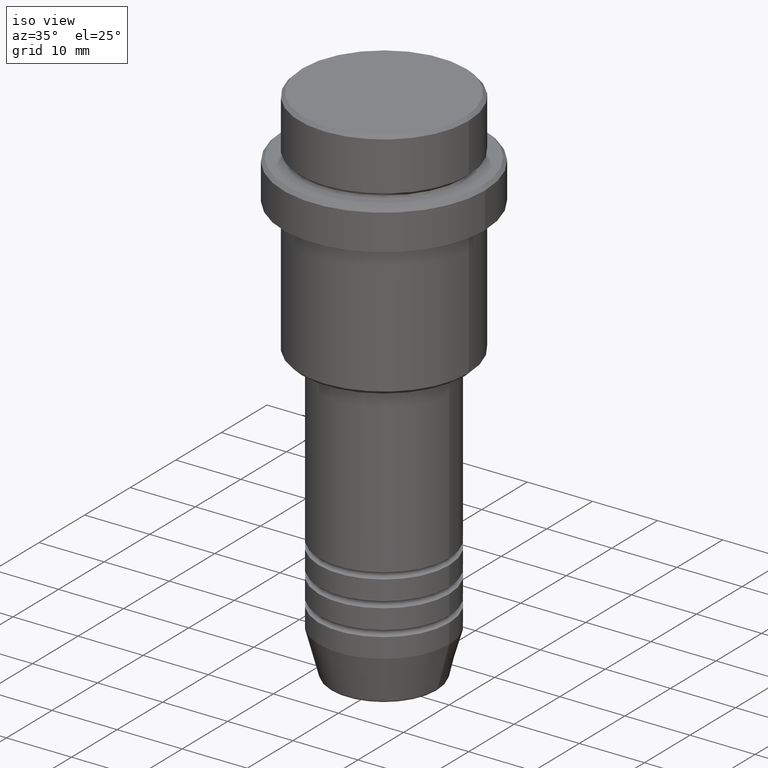
[diagram: clean part render]
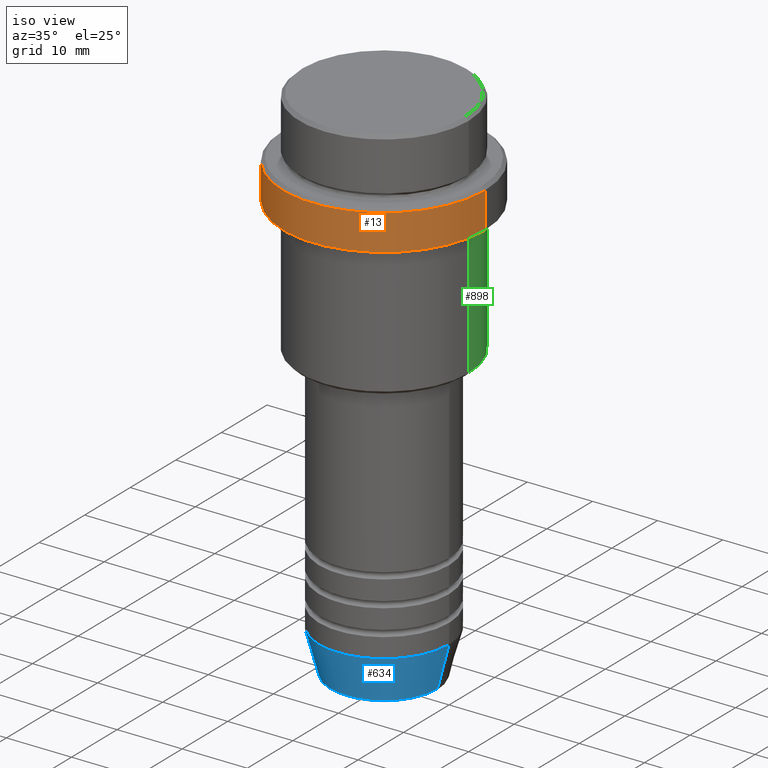
[diagram: same view with three faces highlighted in distinct colors, each labeled with its STEP entity id]
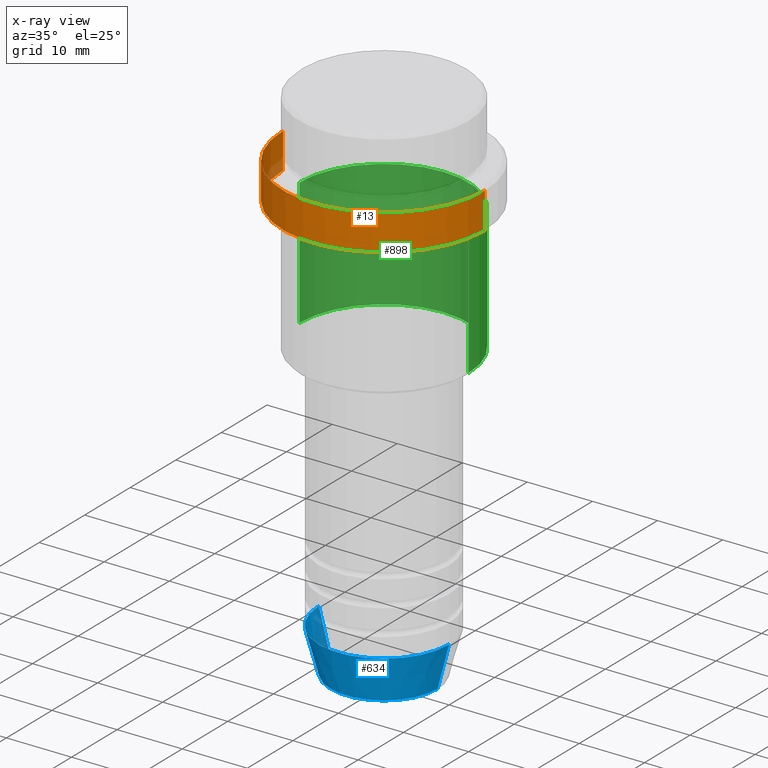
[diagram: x-ray of the same camera — body ghosted, the three highlighted faces saturated]
A machine part, iso view with three faces highlighted in distinct colors.
The next image is the same camera in x-ray (body ghosted, the three faces saturated) — at least one of them is partly hidden behind the body in this view.
Their STEP definitions:

[orange] entity #13 — the highlighted cylindrical surface (partial cylindrical patch) has radius 15.5 mm, axis along (-0, -0, 1).
#5 = DIRECTION ( 'NONE',  ( -0.000000000000000000, -0.000000000000000000, 1.000000000000000000 ) ) ;
#11 = CARTESIAN_POINT ( 'NONE',  ( 0.000000000000000000, 0.000000000000000000, -15.00000000000000000 ) ) ;
#13 = ADVANCED_FACE ( 'NONE', ( #1224 ), #1114, .T. ) ;
#113 = DIRECTION ( 'NONE',  ( 1.000000000000000000, 0.000000000000000000, 0.000000000000000000 ) ) ;
#184 = ORIENTED_EDGE ( 'NONE', *, *, #1280, .T. ) ;
#208 = LINE ( 'NONE', #628, #1349 ) ;
#221 = DIRECTION ( 'NONE',  ( -0.000000000000000000, -0.000000000000000000, 1.000000000000000000 ) ) ;
#271 = CARTESIAN_POINT ( 'NONE',  ( 15.50000000000000000, 0.000000000000000000, -9.500000000000012434 ) ) ;
#288 = ORIENTED_EDGE ( 'NONE', *, *, #533, .F. ) ;
#343 = ORIENTED_EDGE ( 'NONE', *, *, #745, .T. ) ;
#378 = DIRECTION ( 'NONE',  ( 1.000000000000000000, 0.000000000000000000, 0.000000000000000000 ) ) ;
#430 = ORIENTED_EDGE ( 'NONE', *, *, #1363, .T. ) ;
#448 = CIRCLE ( 'NONE', #569, 15.50000000000000000 ) ;
#473 = CARTESIAN_POINT ( 'NONE',  ( 0.000000000000000000, 0.000000000000000000, -9.500000000000012434 ) ) ;
#533 = EDGE_CURVE ( 'NONE', #1216, #1053, #1245, .T. ) ;
#552 = CIRCLE ( 'NONE', #937, 15.50000000000000000 ) ;
#569 = AXIS2_PLACEMENT_3D ( 'NONE', #473, #1259, #378 ) ;
#588 = VECTOR ( 'NONE', #1035, 1000.000000000000000 ) ;
#589 = EDGE_LOOP ( 'NONE', ( #288, #184, #343, #430 ) ) ;
#627 = CARTESIAN_POINT ( 'NONE',  ( 15.50000000000000000, 0.000000000000000000, -15.00000000000000000 ) ) ;
#628 = CARTESIAN_POINT ( 'NONE',  ( 15.50000000000000000, 0.000000000000000000, 0.000000000000000000 ) ) ;
#648 = DIRECTION ( 'NONE',  ( 1.000000000000000000, 0.000000000000000000, 0.000000000000000000 ) ) ;
#654 = CARTESIAN_POINT ( 'NONE',  ( -15.50000000000000000, 1.898202538678397557E-15, -15.00000000000000000 ) ) ;
#719 = CARTESIAN_POINT ( 'NONE',  ( -15.50000000000000000, 1.898202538678397557E-15, -9.500000000000012434 ) ) ;
#745 = EDGE_CURVE ( 'NONE', #1277, #1039, #208, .T. ) ;
#937 = AXIS2_PLACEMENT_3D ( 'NONE', #11, #221, #648 ) ;
#1000 = CARTESIAN_POINT ( 'NONE',  ( 0.000000000000000000, 0.000000000000000000, 0.000000000000000000 ) ) ;
#1035 = DIRECTION ( 'NONE',  ( -0.000000000000000000, -0.000000000000000000, 1.000000000000000000 ) ) ;
#1039 = VERTEX_POINT ( 'NONE', #271 ) ;
#1053 = VERTEX_POINT ( 'NONE', #719 ) ;
#1114 = CYLINDRICAL_SURFACE ( 'NONE', #1196, 15.50000000000000000 ) ;
#1196 = AXIS2_PLACEMENT_3D ( 'NONE', #1000, #5, #113 ) ;
#1216 = VERTEX_POINT ( 'NONE', #654 ) ;
#1224 = FACE_OUTER_BOUND ( 'NONE', #589, .T. ) ;
#1245 = LINE ( 'NONE', #1362, #588 ) ;
#1259 = DIRECTION ( 'NONE',  ( 0.000000000000000000, 0.000000000000000000, -1.000000000000000000 ) ) ;
#1277 = VERTEX_POINT ( 'NONE', #627 ) ;
#1278 = DIRECTION ( 'NONE',  ( -0.000000000000000000, -0.000000000000000000, 1.000000000000000000 ) ) ;
#1280 = EDGE_CURVE ( 'NONE', #1216, #1277, #552, .T. ) ;
#1349 = VECTOR ( 'NONE', #1278, 1000.000000000000000 ) ;
#1362 = CARTESIAN_POINT ( 'NONE',  ( -15.50000000000000000, 1.898202538678397557E-15, 0.000000000000000000 ) ) ;
#1363 = EDGE_CURVE ( 'NONE', #1039, #1053, #448, .T. ) ;

[blue] entity #634 — the highlighted conical surface has half-angle 15 deg.
#38 = ORIENTED_EDGE ( 'NONE', *, *, #60, .F. ) ;
#54 = LINE ( 'NONE', #269, #1225 ) ;
#60 = EDGE_CURVE ( 'NONE', #1085, #251, #657, .T. ) ;
#61 = CONICAL_SURFACE ( 'NONE', #394, 10.00000000000000000, 0.2617993877991500740 ) ;
#152 = AXIS2_PLACEMENT_3D ( 'NONE', #742, #1309, #1009 ) ;
#183 = DIRECTION ( 'NONE',  ( -0.000000000000000000, -0.000000000000000000, 1.000000000000000000 ) ) ;
#227 = ORIENTED_EDGE ( 'NONE', *, *, #1205, .T. ) ;
#251 = VERTEX_POINT ( 'NONE', #359 ) ;
#269 = CARTESIAN_POINT ( 'NONE',  ( 10.00000000000000000, 0.000000000000000000, -74.00000000000000000 ) ) ;
#304 = DIRECTION ( 'NONE',  ( -0.2588190451025213501, 3.169619151431772337E-17, 0.9659258262890680902 ) ) ;
#359 = CARTESIAN_POINT ( 'NONE',  ( 10.00000000000000000, 0.000000000000000000, -74.00000000000000000 ) ) ;
#382 = CARTESIAN_POINT ( 'NONE',  ( -8.223655072137194821, 1.115877042642912251E-15, -80.62940952255125637 ) ) ;
#386 = ORIENTED_EDGE ( 'NONE', *, *, #680, .F. ) ;
#394 = AXIS2_PLACEMENT_3D ( 'NONE', #1082, #716, #1398 ) ;
#514 = LINE ( 'NONE', #747, #1199 ) ;
#527 = CIRCLE ( 'NONE', #917, 8.223655072137194821 ) ;
#561 = EDGE_CURVE ( 'NONE', #1413, #251, #54, .T. ) ;
#571 = VERTEX_POINT ( 'NONE', #382 ) ;
#608 = CARTESIAN_POINT ( 'NONE',  ( -10.00000000000000000, 1.224646799147353256E-15, -74.00000000000000000 ) ) ;
#634 = ADVANCED_FACE ( 'NONE', ( #944 ), #61, .T. ) ;
#657 = CIRCLE ( 'NONE', #152, 10.00000000000000000 ) ;
#680 = EDGE_CURVE ( 'NONE', #571, #1085, #514, .T. ) ;
#693 = DIRECTION ( 'NONE',  ( 0.2588190451025213501, 0.000000000000000000, 0.9659258262890680902 ) ) ;
#716 = DIRECTION ( 'NONE',  ( -0.000000000000000000, -0.000000000000000000, 1.000000000000000000 ) ) ;
#742 = CARTESIAN_POINT ( 'NONE',  ( 0.000000000000000000, 0.000000000000000000, -74.00000000000000000 ) ) ;
#747 = CARTESIAN_POINT ( 'NONE',  ( -10.00000000000000000, 1.224646799147353256E-15, -74.00000000000000000 ) ) ;
#917 = AXIS2_PLACEMENT_3D ( 'NONE', #1160, #183, #1046 ) ;
#944 = FACE_OUTER_BOUND ( 'NONE', #1319, .T. ) ;
#1009 = DIRECTION ( 'NONE',  ( 1.000000000000000000, 0.000000000000000000, 0.000000000000000000 ) ) ;
#1046 = DIRECTION ( 'NONE',  ( 1.000000000000000000, 0.000000000000000000, 0.000000000000000000 ) ) ;
#1082 = CARTESIAN_POINT ( 'NONE',  ( 0.000000000000000000, 0.000000000000000000, -74.00000000000000000 ) ) ;
#1085 = VERTEX_POINT ( 'NONE', #608 ) ;
#1088 = ORIENTED_EDGE ( 'NONE', *, *, #561, .T. ) ;
#1115 = CARTESIAN_POINT ( 'NONE',  ( 8.223655072137194821, 0.000000000000000000, -80.62940952255125637 ) ) ;
#1160 = CARTESIAN_POINT ( 'NONE',  ( 0.000000000000000000, 0.000000000000000000, -80.62940952255125637 ) ) ;
#1199 = VECTOR ( 'NONE', #304, 1000.000000000000000 ) ;
#1205 = EDGE_CURVE ( 'NONE', #571, #1413, #527, .T. ) ;
#1225 = VECTOR ( 'NONE', #693, 1000.000000000000000 ) ;
#1309 = DIRECTION ( 'NONE',  ( -0.000000000000000000, -0.000000000000000000, 1.000000000000000000 ) ) ;
#1319 = EDGE_LOOP ( 'NONE', ( #386, #227, #1088, #38 ) ) ;
#1398 = DIRECTION ( 'NONE',  ( 1.000000000000000000, 0.000000000000000000, 0.000000000000000000 ) ) ;
#1413 = VERTEX_POINT ( 'NONE', #1115 ) ;

[green] entity #898 — the highlighted cylindrical surface (partial cylindrical patch) has radius 13 mm, axis along (-0, -0, 1).
#7 = EDGE_CURVE ( 'NONE', #414, #397, #953, .T. ) ;
#27 = FACE_OUTER_BOUND ( 'NONE', #1321, .T. ) ;
#73 = VERTEX_POINT ( 'NONE', #226 ) ;
#124 = EDGE_CURVE ( 'NONE', #1184, #73, #497, .T. ) ;
#200 = LINE ( 'NONE', #948, #959 ) ;
#205 = CARTESIAN_POINT ( 'NONE',  ( 13.00000000000000000, 0.000000000000000000, -16.00000000000000000 ) ) ;
#219 = CARTESIAN_POINT ( 'NONE',  ( 0.000000000000000000, 0.000000000000000000, -16.00000000000000000 ) ) ;
#226 = CARTESIAN_POINT ( 'NONE',  ( -13.00000000000000000, 1.592040838891559095E-15, -16.00000000000000000 ) ) ;
#397 = VERTEX_POINT ( 'NONE', #1044 ) ;
#403 = EDGE_CURVE ( 'NONE', #397, #73, #600, .T. ) ;
#414 = VERTEX_POINT ( 'NONE', #1250 ) ;
#429 = CYLINDRICAL_SURFACE ( 'NONE', #568, 13.00000000000000000 ) ;
#497 = CIRCLE ( 'NONE', #1008, 13.00000000000000000 ) ;
#555 = DIRECTION ( 'NONE',  ( -0.000000000000000000, -0.000000000000000000, 1.000000000000000000 ) ) ;
#568 = AXIS2_PLACEMENT_3D ( 'NONE', #860, #1342, #779 ) ;
#600 = LINE ( 'NONE', #1382, #870 ) ;
#612 = DIRECTION ( 'NONE',  ( -0.000000000000000000, -0.000000000000000000, 1.000000000000000000 ) ) ;
#683 = EDGE_CURVE ( 'NONE', #414, #1184, #200, .T. ) ;
#694 = DIRECTION ( 'NONE',  ( -0.000000000000000000, -0.000000000000000000, 1.000000000000000000 ) ) ;
#779 = DIRECTION ( 'NONE',  ( 1.000000000000000000, 0.000000000000000000, 0.000000000000000000 ) ) ;
#814 = ORIENTED_EDGE ( 'NONE', *, *, #683, .F. ) ;
#841 = AXIS2_PLACEMENT_3D ( 'NONE', #1320, #555, #994 ) ;
#860 = CARTESIAN_POINT ( 'NONE',  ( 0.000000000000000000, 0.000000000000000000, 0.000000000000000000 ) ) ;
#870 = VECTOR ( 'NONE', #694, 1000.000000000000000 ) ;
#898 = ADVANCED_FACE ( 'NONE', ( #27 ), #429, .T. ) ;
#942 = ORIENTED_EDGE ( 'NONE', *, *, #7, .T. ) ;
#948 = CARTESIAN_POINT ( 'NONE',  ( 13.00000000000000000, 0.000000000000000000, 0.000000000000000000 ) ) ;
#953 = CIRCLE ( 'NONE', #841, 13.00000000000000000 ) ;
#959 = VECTOR ( 'NONE', #612, 1000.000000000000000 ) ;
#981 = ORIENTED_EDGE ( 'NONE', *, *, #403, .T. ) ;
#994 = DIRECTION ( 'NONE',  ( -1.000000000000000000, 0.000000000000000000, 0.000000000000000000 ) ) ;
#1001 = DIRECTION ( 'NONE',  ( 1.000000000000000000, 0.000000000000000000, 0.000000000000000000 ) ) ;
#1008 = AXIS2_PLACEMENT_3D ( 'NONE', #219, #1033, #1001 ) ;
#1033 = DIRECTION ( 'NONE',  ( -0.000000000000000000, -0.000000000000000000, 1.000000000000000000 ) ) ;
#1044 = CARTESIAN_POINT ( 'NONE',  ( -13.00000000000000000, 1.592040838891559095E-15, -35.49999999999997868 ) ) ;
#1173 = ORIENTED_EDGE ( 'NONE', *, *, #124, .F. ) ;
#1184 = VERTEX_POINT ( 'NONE', #205 ) ;
#1250 = CARTESIAN_POINT ( 'NONE',  ( 13.00000000000000000, 0.000000000000000000, -35.49999999999997868 ) ) ;
#1320 = CARTESIAN_POINT ( 'NONE',  ( 0.000000000000000000, 0.000000000000000000, -35.49999999999997868 ) ) ;
#1321 = EDGE_LOOP ( 'NONE', ( #942, #981, #1173, #814 ) ) ;
#1342 = DIRECTION ( 'NONE',  ( -0.000000000000000000, -0.000000000000000000, 1.000000000000000000 ) ) ;
#1382 = CARTESIAN_POINT ( 'NONE',  ( -13.00000000000000000, 1.592040838891559095E-15, 0.000000000000000000 ) ) ;